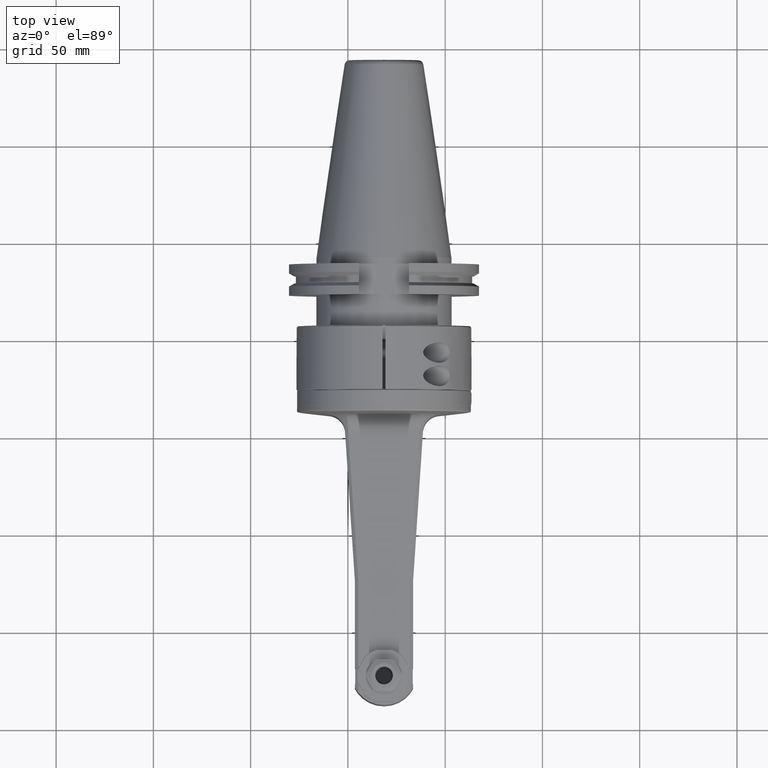
[diagram: clean part render]
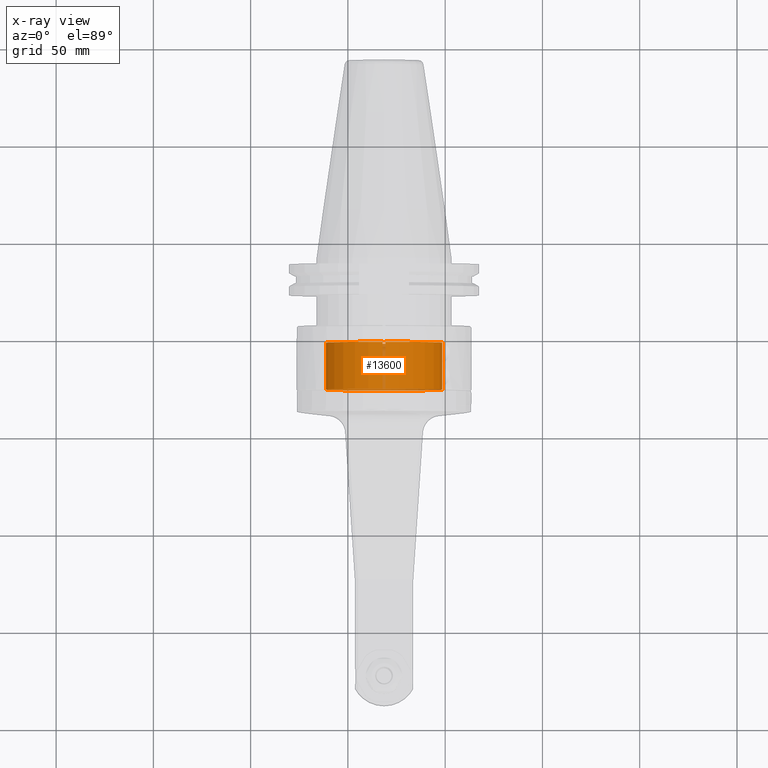
[diagram: x-ray — body ghosted, one internal face saturated and labeled with its STEP entity id]
A machine part, top view, then the same camera in x-ray: the body is ghosted and one INTERNAL B-rep face — a face not visible from any outside direction — is saturated and labeled: STEP entity #13600.
In plain terms, the highlighted cylindrical surface (partial cylindrical patch) has radius 30 mm, axis along (0, -1, 0).
Its self-contained STEP definition (entity closure, byte-faithful):
#1359=FACE_OUTER_BOUND('',#2194,.T.);
#2194=EDGE_LOOP('',(#11468,#11469,#11470,#11471));
#2933=CIRCLE('',#14865,30.);
#2934=CIRCLE('',#14867,30.);
#3675=LINE('',#22901,#4840);
#3687=LINE('',#22951,#4852);
#4840=VECTOR('',#17242,10.);
#4852=VECTOR('',#17282,10.);
#6336=VERTEX_POINT('',#22898);
#6337=VERTEX_POINT('',#22900);
#6354=VERTEX_POINT('',#22948);
#6355=VERTEX_POINT('',#22950);
#7971=EDGE_CURVE('',#6336,#6337,#3675,.T.);
#7995=EDGE_CURVE('',#6354,#6355,#3687,.T.);
#8291=EDGE_CURVE('',#6336,#6355,#2933,.T.);
#8292=EDGE_CURVE('',#6354,#6337,#2934,.T.);
#11468=ORIENTED_EDGE('',*,*,#8292,.T.);
#11469=ORIENTED_EDGE('',*,*,#7971,.F.);
#11470=ORIENTED_EDGE('',*,*,#8291,.T.);
#11471=ORIENTED_EDGE('',*,*,#7995,.F.);
#13060=CYLINDRICAL_SURFACE('',#14866,30.);
#13600=ADVANCED_FACE('',(#1359),#13060,.F.);
#14865=AXIS2_PLACEMENT_3D('',#24279,#17863,#17864);
#14866=AXIS2_PLACEMENT_3D('',#24280,#17865,#17866);
#14867=AXIS2_PLACEMENT_3D('',#24281,#17867,#17868);
#17242=DIRECTION('',(0.,-1.,0.));
#17282=DIRECTION('',(0.,1.,0.));
#17863=DIRECTION('center_axis',(0.,1.,0.));
#17864=DIRECTION('ref_axis',(-1.,0.,-9.73107079612E-14));
#17865=DIRECTION('center_axis',(0.,-1.,0.));
#17866=DIRECTION('ref_axis',(-1.07187543957223E-15,0.,-1.));
#17867=DIRECTION('center_axis',(0.,-1.,0.));
#17868=DIRECTION('ref_axis',(-0.0250000000001901,0.,0.999687451156606));
#22898=CARTESIAN_POINT('',(0.749999417915861,24.6002606405827,29.9906235241203));
#22900=CARTESIAN_POINT('',(0.74999991414925,0.49997497485355,29.990623529662));
#22901=CARTESIAN_POINT('',(0.75,34.65,29.9906235346983));
#22948=CARTESIAN_POINT('',(-0.749999914149166,0.499974974853475,29.990623529662));
#22950=CARTESIAN_POINT('',(-0.749999417915806,24.6002606405827,29.9906235241203));
#22951=CARTESIAN_POINT('',(-0.75,34.65,29.9906235346983));
#24279=CARTESIAN_POINT('Origin',(4.281019982955E-13,24.60026076495,2.936317855529E-12));
#24280=CARTESIAN_POINT('Origin',(0.,34.65,0.));
#24281=CARTESIAN_POINT('Origin',(9.414691248821E-14,0.4999749581102,-2.717825964282E-13));